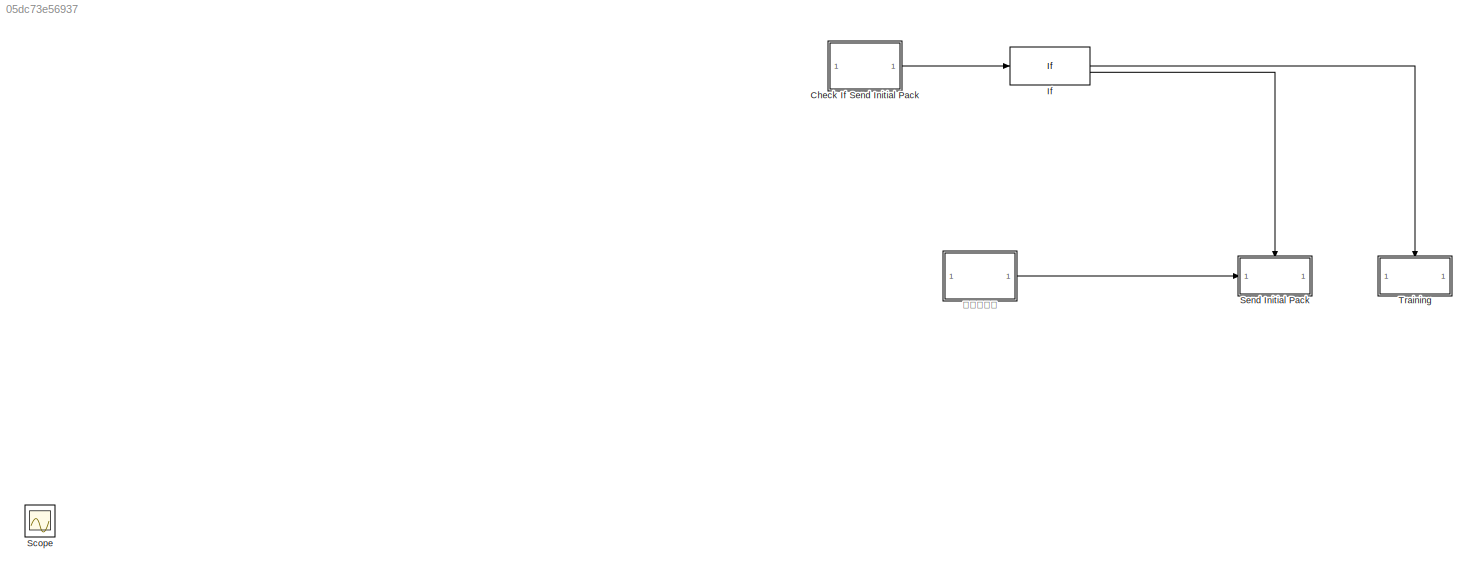
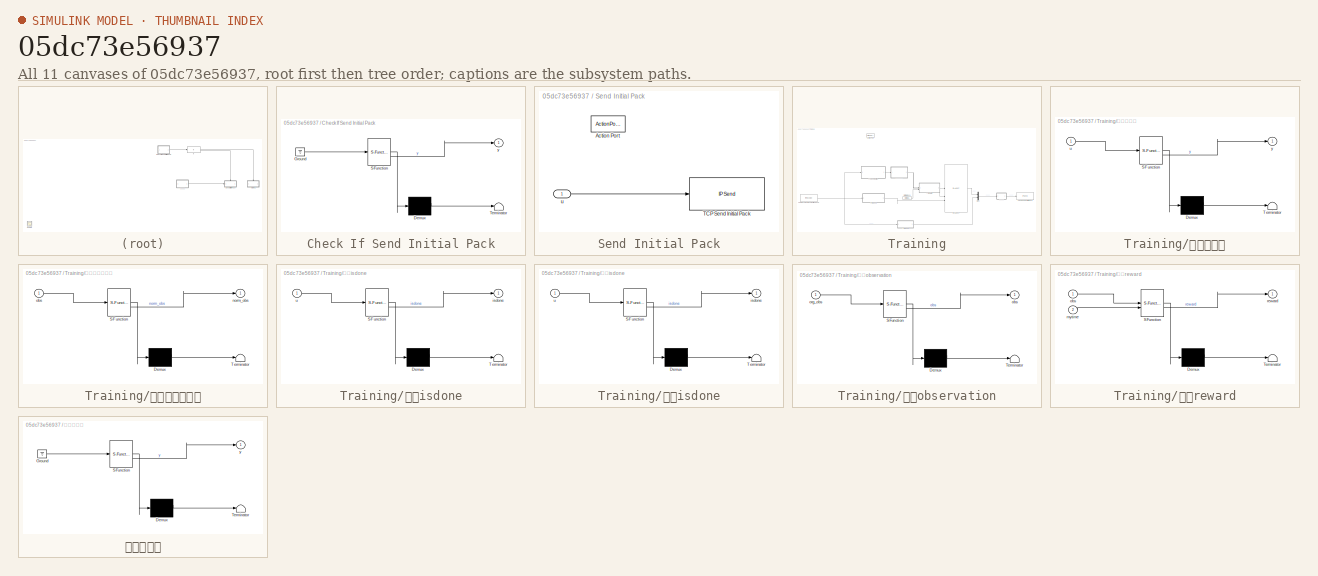
[diagram: thumbnail index - all 11 canvases of the model, root first then tree order]
MODEL slx_05dc73e56937
KIND model
CONFIG AbsTol = auto
CONFIG EnableMultiTasking = on
CONFIG FixedStep = auto
CONFIG MaxStep = auto
CONFIG MinStep = auto
CONFIG RelTol = 1e-3
CONFIG SampleTimeConstraint = Unconstrained
CONFIG SolverName = ode45
CONFIG StartTime = 0.0
CONFIG StopTime = 20
BLOCK [SubSystem] Check If Send Initial Pack
  ErrorFcn = Stateflow.Translate.translate
  LibrarySourceBlock = simulink/User-Defined\nFunctions/MATLAB Function
  PermitHierarchicalResolution = ExplicitOnly
  SFBlockType = MATLAB Function
  TreatAsAtomicUnit = on
BLOCK [Demux] Check If Send Initial Pack/ Demux 
  Outputs = 1
BLOCK [Ground] Check If Send Initial Pack/ Ground 
BLOCK [S-Function] Check If Send Initial Pack/ SFunction 
  EnableBusSupport = on
  FunctionName = sf_sfun
  PortCounts = [1 2]
  SFcnIsStateOwnerBlock = off
  SFunctionDeploymentMode = off
  Tag = Stateflow S-Function 11
BLOCK [Terminator] Check If Send Initial Pack/ Terminator 
BLOCK [Outport] Check If Send Initial Pack/y
BLOCK [If] If
BLOCK [Scope] Scope
  Floating = off
  IOType = viewer
  NumInputPorts = 1
  ScopeSpecificationString = Simulink.scopes.TimeScopeBlockCfg('CurrentConfiguration', extmgr.ConfigurationSet(extmgr.Configuration('Core','General UI',true),extmgr.Configuration('Core','Source UI',true),extmgr.Configuration('Sources','WiredSimulink',true),extmgr.Configuration('Visuals','Time Domain',true,'SerializedDisplays',{struct('MinYLimReal','1.64702','MaxYLimReal','21.18944','YLabelReal','','MinYLimMag','0.00000','MaxY...<+2915ch>
BLOCK [SubSystem] Send Initial Pack
  TreatAsAtomicUnit = on
BLOCK [ActionPort] Send Initial Pack/Action Port
  ActionPortLabel = else
BLOCK [Reference] Send Initial Pack/TCP Send Initial Pack  REF=instrumentlib/TCP//IP Send
  Priority = 1
  SourceBlock = instrumentlib/TCP//IP Send
  SourceType = instrument.system.TCPIPSend
BLOCK [Inport] Send Initial Pack/u
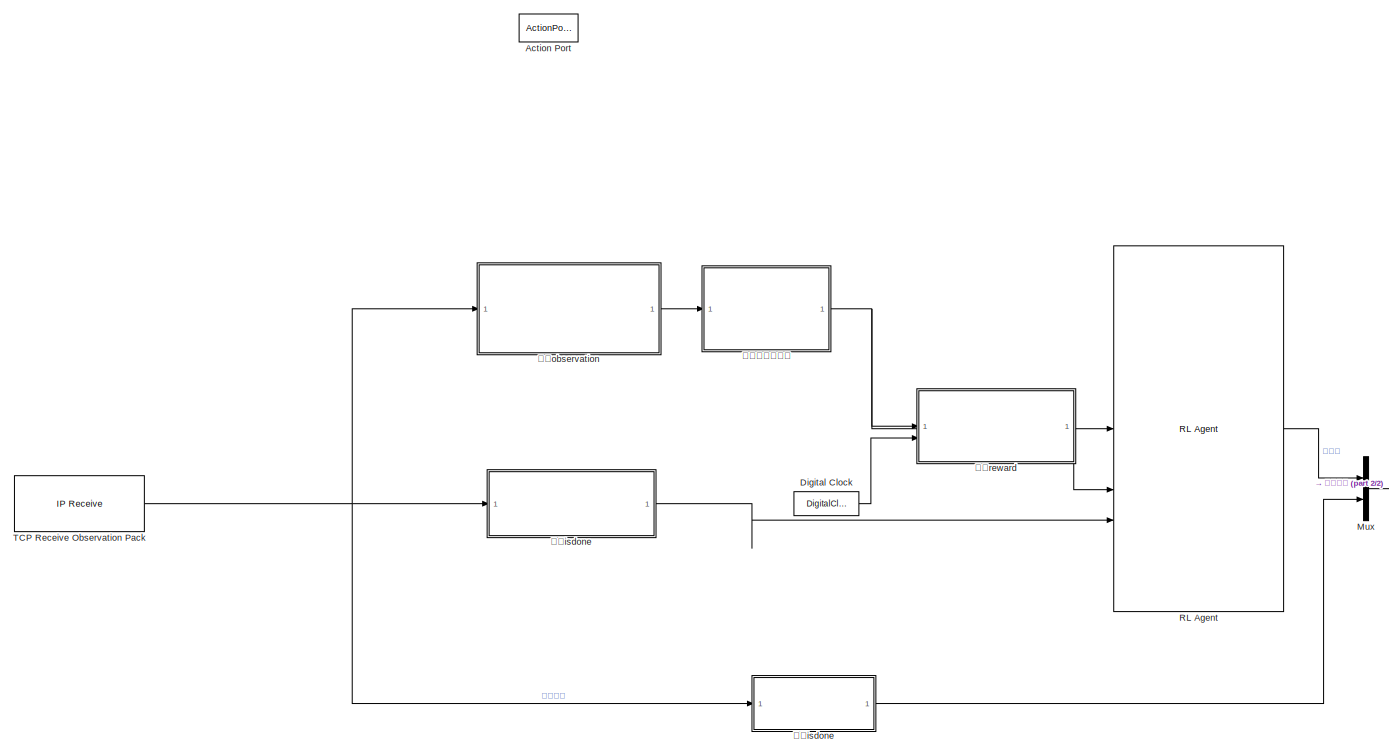
[diagram: Training - part 1/2, most of the canvas]
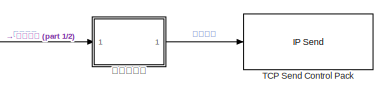
[diagram: Training - part 2/2, middle right region]
BLOCK [SubSystem] Training
  TreatAsAtomicUnit = on
BLOCK [ActionPort] Training/Action Port
  ActionPortLabel = if(u1 > 0)
BLOCK [DigitalClock] Training/Digital Clock
BLOCK [Mux] Training/Mux
  DisplayOption = bar
  Inputs = 2
BLOCK [Reference] Training/RL Agent  REF=rllib/RL Agent
  SourceBlock = rllib/RL Agent
  SourceType = RL Agent
BLOCK [Reference] Training/TCP Receive Observation Pack  REF=instrumentlib/TCP//IP Receive
  Priority = 2
  SourceBlock = instrumentlib/TCP//IP Receive
  SourceType = instrument.system.TCPIPReceive
BLOCK [Reference] Training/TCP Send Control Pack  REF=instrumentlib/TCP//IP Send
  Priority = 3
  SourceBlock = instrumentlib/TCP//IP Send
  SourceType = instrument.system.TCPIPSend
BLOCK [SubSystem] Training/打包控制量
  ErrorFcn = Stateflow.Translate.translate
  PermitHierarchicalResolution = ExplicitOnly
  SFBlockType = MATLAB Function
  TreatAsAtomicUnit = on
BLOCK [Demux] Training/打包控制量/ Demux 
  Outputs = 1
BLOCK [S-Function] Training/打包控制量/ SFunction 
  EnableBusSupport = on
  FunctionName = sf_sfun
  PortCounts = [1 2]
  SFcnIsStateOwnerBlock = off
  SFunctionDeploymentMode = off
  Tag = Stateflow S-Function 13
BLOCK [Terminator] Training/打包控制量/ Terminator 
BLOCK [Inport] Training/打包控制量/u
BLOCK [Outport] Training/打包控制量/y
BLOCK [SubSystem] Training/数据归一化处理
  ErrorFcn = Stateflow.Translate.translate
  LibrarySourceBlock = simulink/User-Defined\nFunctions/MATLAB Function
  PermitHierarchicalResolution = ExplicitOnly
  SFBlockType = MATLAB Function
  TreatAsAtomicUnit = on
BLOCK [Demux] Training/数据归一化处理/ Demux 
  Outputs = 1
BLOCK [S-Function] Training/数据归一化处理/ SFunction 
  EnableBusSupport = on
  FunctionName = sf_sfun
  PortCounts = [1 2]
  SFcnIsStateOwnerBlock = off
  SFunctionDeploymentMode = off
  Tag = Stateflow S-Function 9
BLOCK [Terminator] Training/数据归一化处理/ Terminator 
BLOCK [Outport] Training/数据归一化处理/norm_obs
BLOCK [Inport] Training/数据归一化处理/obs
BLOCK [SubSystem] Training/获取isdone
  ErrorFcn = Stateflow.Translate.translate
  LibrarySourceBlock = simulink/User-Defined\nFunctions/MATLAB Function
  PermitHierarchicalResolution = ExplicitOnly
  SFBlockType = MATLAB Function
  TreatAsAtomicUnit = on
BLOCK [Demux] Training/获取isdone/ Demux 
  Outputs = 1
BLOCK [S-Function] Training/获取isdone/ SFunction 
  EnableBusSupport = on
  FunctionName = sf_sfun
  PortCounts = [1 2]
  SFcnIsStateOwnerBlock = off
  SFunctionDeploymentMode = off
  Tag = Stateflow S-Function 6
BLOCK [Terminator] Training/获取isdone/ Terminator 
BLOCK [Outport] Training/获取isdone/isdone
BLOCK [Inport] Training/获取isdone/u
BLOCK [SubSystem] Training/计算isdone
  ErrorFcn = Stateflow.Translate.translate
  LibrarySourceBlock = simulink/User-Defined\nFunctions/MATLAB Function
  PermitHierarchicalResolution = ExplicitOnly
  SFBlockType = MATLAB Function
  TreatAsAtomicUnit = on
BLOCK [Demux] Training/计算isdone/ Demux 
  Outputs = 1
BLOCK [S-Function] Training/计算isdone/ SFunction 
  EnableBusSupport = on
  FunctionName = sf_sfun
  PortCounts = [1 2]
  SFcnIsStateOwnerBlock = off
  SFunctionDeploymentMode = off
  Tag = Stateflow S-Function 10
BLOCK [Terminator] Training/计算isdone/ Terminator 
BLOCK [Outport] Training/计算isdone/isdone
BLOCK [Inport] Training/计算isdone/u
BLOCK [SubSystem] Training/计算observation
  ErrorFcn = Stateflow.Translate.translate
  LibrarySourceBlock = simulink/User-Defined\nFunctions/MATLAB Function
  PermitHierarchicalResolution = ExplicitOnly
  SFBlockType = MATLAB Function
  TreatAsAtomicUnit = on
BLOCK [Demux] Training/计算observation/ Demux 
  Outputs = 1
BLOCK [S-Function] Training/计算observation/ SFunction 
  EnableBusSupport = on
  FunctionName = sf_sfun
  PortCounts = [1 2]
  SFcnIsStateOwnerBlock = off
  SFunctionDeploymentMode = off
  Tag = Stateflow S-Function 8
BLOCK [Terminator] Training/计算observation/ Terminator 
BLOCK [Outport] Training/计算observation/obs
BLOCK [Inport] Training/计算observation/org_obs
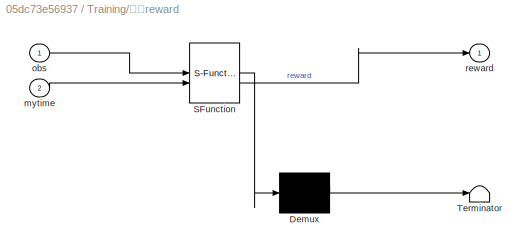
BLOCK [SubSystem] Training/计算reward
  ErrorFcn = Stateflow.Translate.translate
  LibrarySourceBlock = simulink/User-Defined\nFunctions/MATLAB Function
  PermitHierarchicalResolution = ExplicitOnly
  SFBlockType = MATLAB Function
  TreatAsAtomicUnit = on
BLOCK [Demux] Training/计算reward/ Demux 
  Outputs = 1
BLOCK [S-Function] Training/计算reward/ SFunction 
  EnableBusSupport = on
  FunctionName = sf_sfun
  PortCounts = [2 2]
  SFcnIsStateOwnerBlock = off
  SFunctionDeploymentMode = off
  Tag = Stateflow S-Function 7
BLOCK [Terminator] Training/计算reward/ Terminator 
BLOCK [Inport] Training/计算reward/mytime
  Port = 2
BLOCK [Inport] Training/计算reward/obs
BLOCK [Outport] Training/计算reward/reward
BLOCK [SubSystem] 计算初始值
  ErrorFcn = Stateflow.Translate.translate
  LibrarySourceBlock = simulink/User-Defined\nFunctions/MATLAB Function
  PermitHierarchicalResolution = ExplicitOnly
  SFBlockType = MATLAB Function
  TreatAsAtomicUnit = on
BLOCK [Demux] 计算初始值/ Demux 
  Outputs = 1
BLOCK [Ground] 计算初始值/ Ground 
BLOCK [S-Function] 计算初始值/ SFunction 
  EnableBusSupport = on
  FunctionName = sf_sfun
  PortCounts = [1 2]
  SFcnIsStateOwnerBlock = off
  SFunctionDeploymentMode = off
  Tag = Stateflow S-Function 12
BLOCK [Terminator] 计算初始值/ Terminator 
BLOCK [Outport] 计算初始值/y
LINE Check If Send Initial Pack:1 -> If:1
LINE If:1 -> Training:ifaction
LINE If:2 -> Send Initial Pack:ifaction
LINE Send Initial Pack/u:1 -> Send Initial Pack/TCP Send Initial Pack:1
LINE Training/Digital Clock:1 -> Training/计算reward:2
LINE Training/Mux:1 -> Training/打包控制量:1
LINE Training/RL Agent:1 -> Training/Mux:1
NET Training/TCP Receive Observation Pack:1 -> Training/获取isdone:1, Training/计算isdone:1, Training/计算observation:1
LINE Training/打包控制量:1 -> Training/TCP Send Control Pack:1
NET Training/数据归一化处理:1 -> Training/RL Agent:1, Training/计算reward:1
LINE Training/获取isdone:1 -> Training/RL Agent:3
LINE Training/计算isdone:1 -> Training/Mux:2
LINE Training/计算observation:1 -> Training/数据归一化处理:1
LINE Training/计算reward:1 -> Training/RL Agent:2
LINE 计算初始值:1 -> Send Initial Pack:1
note: NET lines group one-source signal fan-out (src -> all destinations, sorted); 1:1 wires keep LINE
CHART Training/获取isdone states=1 transitions=1
  STATE_LABEL 'eML_blk_kernel()'
  STATE_LABEL 'SCRIPT:\nfunction isdone = fcn(u)\nisdone = u(27);\nend'
CHART Training/计算reward states=1 transitions=1
  STATE_LABEL 'eML_blk_kernel()'
  STATE_LABEL "SCRIPT:\nfunction reward = fcn(obs,mytime)\npersistent pre_obs;\nif isempty(pre_obs)\n    pre_obs = obs;\nend\n\n% reward = get_tracking_reward(obs, pre_obs);\nreward = get_my_reward(obs, pre_obs,mytime);\n\npre_obs = obs;\n% if(abs(reward) > 100)\n%     fprintf('reward = ');\n%     disp(reward);\n%     fprintf('\\n');\n% end\nend"
CHART Training/计算observation states=1 transitions=1
  STATE_LABEL 'eML_blk_kernel()'
  STATE_LABEL 'SCRIPT:\nfunction obs = fcn(org_obs)\n% obs = get_tracking_obs(org_obs);\nobs = get_my_obs(org_obs);\nend'
CHART Training/数据归一化处理 states=1 transitions=1
  STATE_LABEL 'eML_blk_kernel()'
  STATE_LABEL 'SCRIPT:\nfunction norm_obs = fcn(obs)\nnorm_obs = normalize_my_obs(obs);\nend'
CHART Training/计算isdone states=1 transitions=1
  STATE_LABEL 'eML_blk_kernel()'
  STATE_LABEL 'SCRIPT:\nfunction isdone = fcn(u)\nisdone = get_my_isdone(u);\nend\n'
CHART Check If Send Initial Pack states=1 transitions=1
  STATE_LABEL 'eML_blk_kernel()'
  STATE_LABEL 'SCRIPT:\nfunction y = fcn()\n%判断是否为第一个回合\npersistent ifSendInitPack;\nif isempty(ifSendInitPack)\n    ifSendInitPack = 0;\nend\ny = ifSendInitPack;\nif(ifSendInitPack == 0)\n    ifSendInitPack = 1;\nend\nend\n  '
CHART 计算初始值 states=1 transitions=1
  STATE_LABEL 'eML_blk_kernel()'
  STATE_LABEL 'SCRIPT:\nfunction y = fcn()\ny = get_my_initial();\nend\n'
CHART Training/打包控制量 states=1 transitions=1
  STATE_LABEL 'eML_blk_kernel()'
  STATE_LABEL 'SCRIPT:\nfunction y = fcn(u)\n   % 打包成数组供TCP模块发送到服务器\n   % 通信协议如下\n   % [throttle，pitch，roll，yaw，is_done]\n   % 根据obs与act中的配置，不让智能体控制滚转，只通过油门、俯仰、偏航三个控制量进行控制\n   y = [u(1), u(2), 0, u(3), u(4)];\n'
CHART  states=0 transitions=0
CHART  states=0 transitions=0
CHART  states=0 transitions=0
CHART  states=0 transitions=0
CHART  states=0 transitions=0
CHART  states=0 transitions=0
CHART  states=0 transitions=0
CHART  states=0 transitions=0
